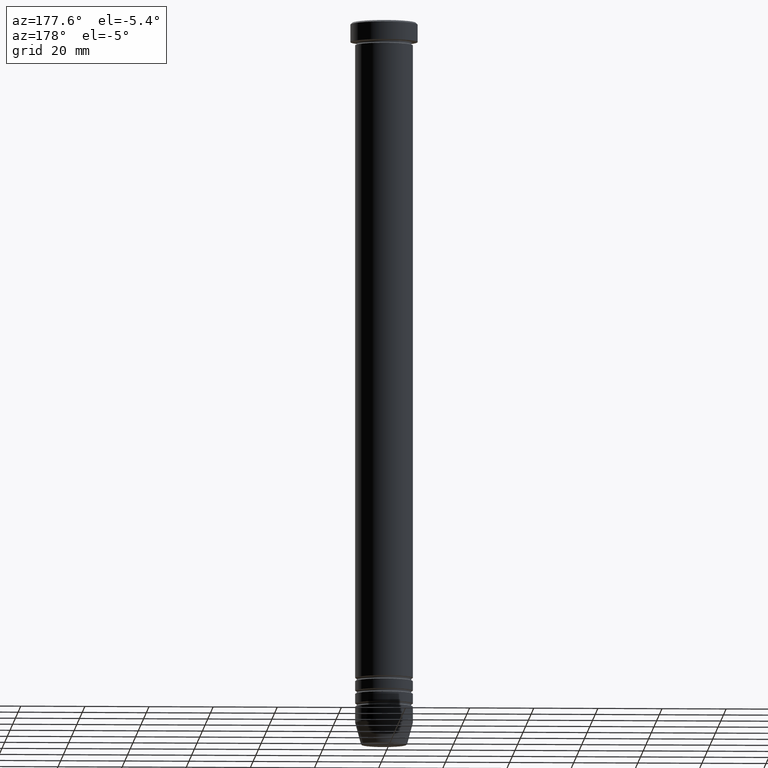
[diagram: clean part render]
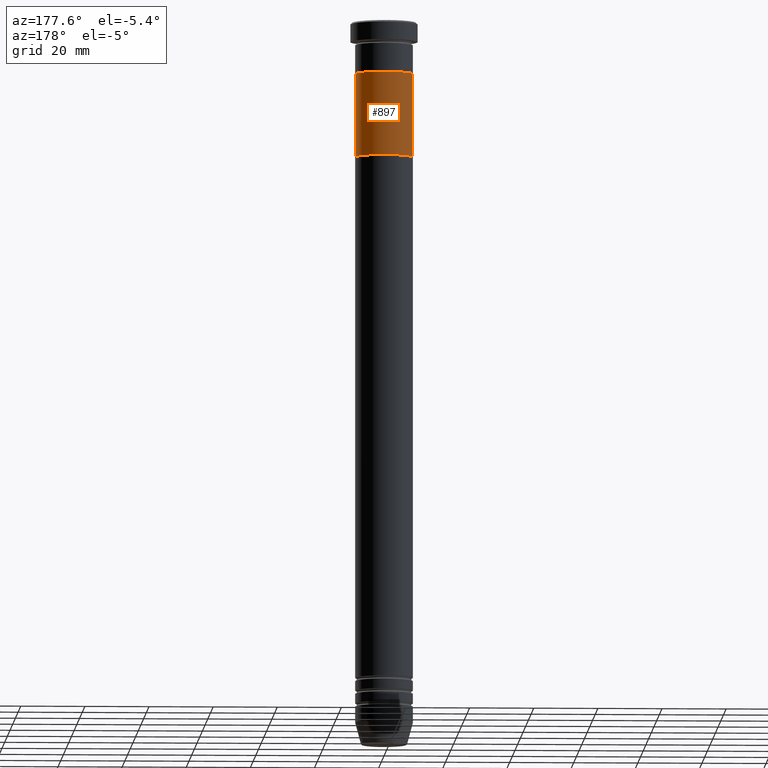
[diagram: same view with one face highlighted and labeled with its STEP entity id]
A machine part, auxiliary view. The second image highlights one B-rep face of the part: STEP entity #897.
In plain terms, the highlighted cylindrical surface (edge-blend (fillet) strip) has radius 9 mm, axis along (-0, -0, 1).
Its self-contained STEP definition (entity closure, byte-faithful):
#57 = ORIENTED_EDGE ( 'NONE', *, *, #280, .F. ) ;
#61 = CARTESIAN_POINT ( 'NONE',  ( 0.000000000000000000, 0.000000000000000000, -41.99999999999999289 ) ) ;
#88 = CARTESIAN_POINT ( 'NONE',  ( 9.000000000000000000, 0.000000000000000000, -41.99999999999999289 ) ) ;
#96 = EDGE_CURVE ( 'NONE', #1142, #443, #293, .T. ) ;
#117 = LINE ( 'NONE', #471, #524 ) ;
#141 = DIRECTION ( 'NONE',  ( 0.000000000000000000, 0.000000000000000000, -1.000000000000000000 ) ) ;
#147 = CARTESIAN_POINT ( 'NONE',  ( -9.000000000000000000, 1.102182119232617517E-15, -16.00000000000000000 ) ) ;
#202 = CYLINDRICAL_SURFACE ( 'NONE', #642, 9.000000000000000000 ) ;
#212 = DIRECTION ( 'NONE',  ( -0.000000000000000000, -0.000000000000000000, 1.000000000000000000 ) ) ;
#255 = VERTEX_POINT ( 'NONE', #664 ) ;
#261 = DIRECTION ( 'NONE',  ( 0.000000000000000000, 0.000000000000000000, -1.000000000000000000 ) ) ;
#280 = EDGE_CURVE ( 'NONE', #420, #443, #117, .T. ) ;
#293 = CIRCLE ( 'NONE', #931, 9.000000000000000000 ) ;
#296 = LINE ( 'NONE', #634, #938 ) ;
#302 = EDGE_LOOP ( 'NONE', ( #670, #444, #566, #57 ) ) ;
#304 = FACE_OUTER_BOUND ( 'NONE', #302, .T. ) ;
#420 = VERTEX_POINT ( 'NONE', #88 ) ;
#443 = VERTEX_POINT ( 'NONE', #1147 ) ;
#444 = ORIENTED_EDGE ( 'NONE', *, *, #1045, .T. ) ;
#471 = CARTESIAN_POINT ( 'NONE',  ( 9.000000000000000000, 0.000000000000000000, -41.99999999999999289 ) ) ;
#524 = VECTOR ( 'NONE', #212, 1000.000000000000000 ) ;
#532 = EDGE_CURVE ( 'NONE', #255, #420, #824, .T. ) ;
#566 = ORIENTED_EDGE ( 'NONE', *, *, #96, .T. ) ;
#601 = DIRECTION ( 'NONE',  ( -1.000000000000000000, 0.000000000000000000, 0.000000000000000000 ) ) ;
#634 = CARTESIAN_POINT ( 'NONE',  ( -9.000000000000000000, 1.102182119232617517E-15, -41.99999999999999289 ) ) ;
#642 = AXIS2_PLACEMENT_3D ( 'NONE', #1055, #896, #966 ) ;
#664 = CARTESIAN_POINT ( 'NONE',  ( -9.000000000000000000, 1.102182119232617517E-15, -41.99999999999999289 ) ) ;
#670 = ORIENTED_EDGE ( 'NONE', *, *, #532, .F. ) ;
#824 = CIRCLE ( 'NONE', #918, 9.000000000000000000 ) ;
#851 = CARTESIAN_POINT ( 'NONE',  ( 0.000000000000000000, 0.000000000000000000, -16.00000000000000000 ) ) ;
#896 = DIRECTION ( 'NONE',  ( -0.000000000000000000, -0.000000000000000000, 1.000000000000000000 ) ) ;
#897 = ADVANCED_FACE ( 'NONE', ( #304 ), #202, .T. ) ;
#907 = DIRECTION ( 'NONE',  ( -0.000000000000000000, -0.000000000000000000, 1.000000000000000000 ) ) ;
#918 = AXIS2_PLACEMENT_3D ( 'NONE', #61, #141, #1029 ) ;
#931 = AXIS2_PLACEMENT_3D ( 'NONE', #851, #261, #601 ) ;
#938 = VECTOR ( 'NONE', #907, 1000.000000000000000 ) ;
#966 = DIRECTION ( 'NONE',  ( 1.000000000000000000, 0.000000000000000000, 0.000000000000000000 ) ) ;
#1029 = DIRECTION ( 'NONE',  ( -1.000000000000000000, 0.000000000000000000, 0.000000000000000000 ) ) ;
#1045 = EDGE_CURVE ( 'NONE', #255, #1142, #296, .T. ) ;
#1055 = CARTESIAN_POINT ( 'NONE',  ( 0.000000000000000000, 0.000000000000000000, -41.99999999999999289 ) ) ;
#1142 = VERTEX_POINT ( 'NONE', #147 ) ;
#1147 = CARTESIAN_POINT ( 'NONE',  ( 9.000000000000000000, 0.000000000000000000, -16.00000000000000000 ) ) ;